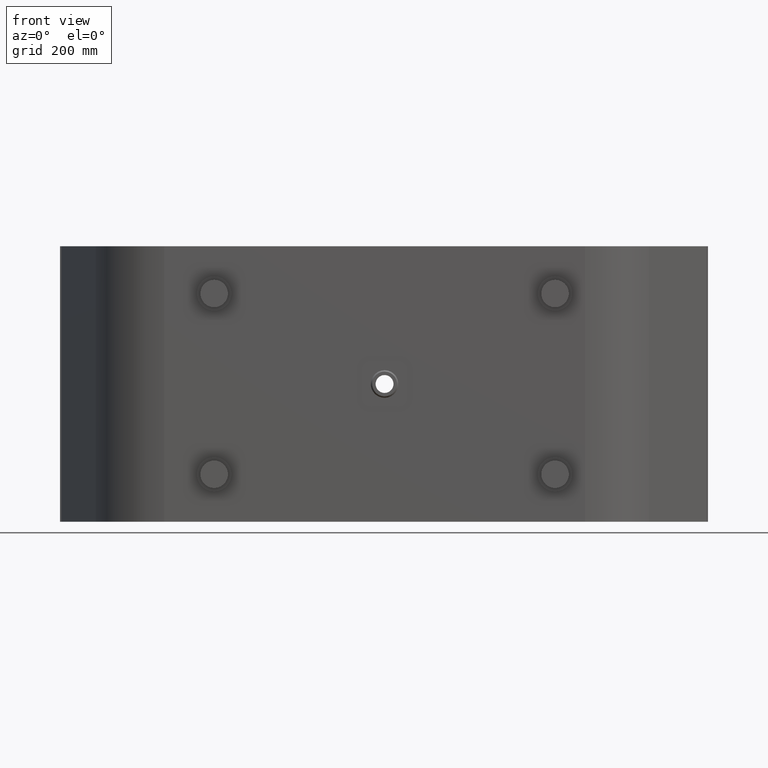
[diagram: clean part render]
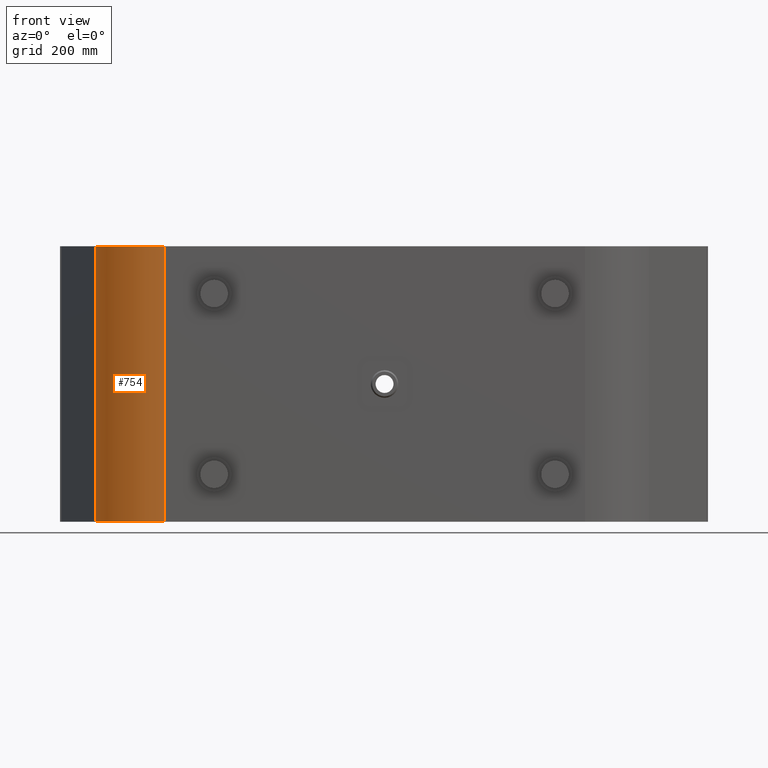
[diagram: same view with one face highlighted and labeled with its STEP entity id]
A machine part, front view. The second image highlights one B-rep face of the part: STEP entity #754.
In plain terms, the highlighted cylindrical surface (partial cylindrical patch) has radius 210 mm, axis along (-0, -0, -1).
Its self-contained STEP definition (entity closure, byte-faithful):
#32 = AXIS2_PLACEMENT_3D ( 'NONE', #1195, #1863, #353 ) ;
#74 = EDGE_CURVE ( 'NONE', #2012, #993, #445, .T. ) ;
#174 = ORIENTED_EDGE ( 'NONE', *, *, #1146, .T. ) ;
#177 = AXIS2_PLACEMENT_3D ( 'NONE', #1940, #424, #1108 ) ;
#202 = LINE ( 'NONE', #881, #1180 ) ;
#307 = CARTESIAN_POINT ( 'NONE',  ( -838.2299909085302261, -299.1681528268418901, 400.0000000000000000 ) ) ;
#316 = DIRECTION ( 'NONE',  ( -0.0000000000000000000, -0.0000000000000000000, -1.000000000000000000 ) ) ;
#353 = DIRECTION ( 'NONE',  ( 1.000000000000000000, 0.0000000000000000000, 0.0000000000000000000 ) ) ;
#424 = DIRECTION ( 'NONE',  ( 0.0000000000000000000, -0.0000000000000000000, -1.000000000000000000 ) ) ;
#445 = LINE ( 'NONE', #1085, #1850 ) ;
#475 = DIRECTION ( 'NONE',  ( -1.000000000000000000, 0.0000000000000000000, 0.0000000000000000000 ) ) ;
#649 = EDGE_LOOP ( 'NONE', ( #1941, #801, #174, #2089 ) ) ;
#754 = ADVANCED_FACE ( 'NONE', ( #1801 ), #1315, .T. ) ;
#801 = ORIENTED_EDGE ( 'NONE', *, *, #1241, .F. ) ;
#818 = AXIS2_PLACEMENT_3D ( 'NONE', #1156, #1974, #475 ) ;
#881 = CARTESIAN_POINT ( 'NONE',  ( -639.9479528049172359, -440.0000000000000568, 390.0000000000000000 ) ) ;
#987 = CARTESIAN_POINT ( 'NONE',  ( -639.9479528049172359, -440.0000000000000568, -400.0000000000000000 ) ) ;
#993 = VERTEX_POINT ( 'NONE', #1511 ) ;
#1004 = CIRCLE ( 'NONE', #32, 209.9999999999999716 ) ;
#1085 = CARTESIAN_POINT ( 'NONE',  ( -838.2299909085302261, -299.1681528268418901, 390.0000000000000000 ) ) ;
#1108 = DIRECTION ( 'NONE',  ( 1.000000000000000000, 0.0000000000000000000, 0.0000000000000000000 ) ) ;
#1140 = CIRCLE ( 'NONE', #177, 209.9999999999999716 ) ;
#1146 = EDGE_CURVE ( 'NONE', #2047, #2012, #1004, .T. ) ;
#1156 = CARTESIAN_POINT ( 'NONE',  ( -639.9479528049172359, -230.0000000000000000, 390.0000000000000000 ) ) ;
#1180 = VECTOR ( 'NONE', #1553, 1000.000000000000000 ) ;
#1195 = CARTESIAN_POINT ( 'NONE',  ( -639.9479528049172359, -230.0000000000000000, 400.0000000000000000 ) ) ;
#1241 = EDGE_CURVE ( 'NONE', #2047, #2016, #202, .T. ) ;
#1315 = CYLINDRICAL_SURFACE ( 'NONE', #818, 209.9999999999999716 ) ;
#1356 = EDGE_CURVE ( 'NONE', #2016, #993, #1140, .T. ) ;
#1511 = CARTESIAN_POINT ( 'NONE',  ( -838.2299909085302261, -299.1681528268418901, -400.0000000000000000 ) ) ;
#1553 = DIRECTION ( 'NONE',  ( -0.0000000000000000000, -0.0000000000000000000, -1.000000000000000000 ) ) ;
#1801 = FACE_OUTER_BOUND ( 'NONE', #649, .T. ) ;
#1850 = VECTOR ( 'NONE', #316, 1000.000000000000000 ) ;
#1863 = DIRECTION ( 'NONE',  ( 0.0000000000000000000, -0.0000000000000000000, -1.000000000000000000 ) ) ;
#1940 = CARTESIAN_POINT ( 'NONE',  ( -639.9479528049172359, -230.0000000000000000, -400.0000000000000000 ) ) ;
#1941 = ORIENTED_EDGE ( 'NONE', *, *, #1356, .F. ) ;
#1974 = DIRECTION ( 'NONE',  ( -0.0000000000000000000, -0.0000000000000000000, -1.000000000000000000 ) ) ;
#2012 = VERTEX_POINT ( 'NONE', #307 ) ;
#2016 = VERTEX_POINT ( 'NONE', #987 ) ;
#2047 = VERTEX_POINT ( 'NONE', #2166 ) ;
#2089 = ORIENTED_EDGE ( 'NONE', *, *, #74, .T. ) ;
#2166 = CARTESIAN_POINT ( 'NONE',  ( -639.9479528049172359, -440.0000000000000568, 400.0000000000000000 ) ) ;